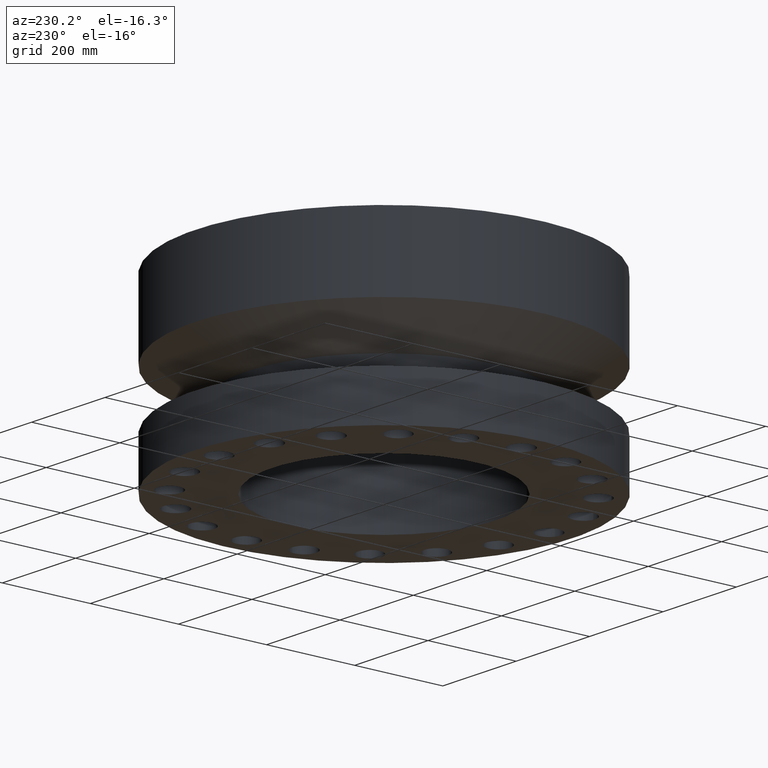
[diagram: clean part render]
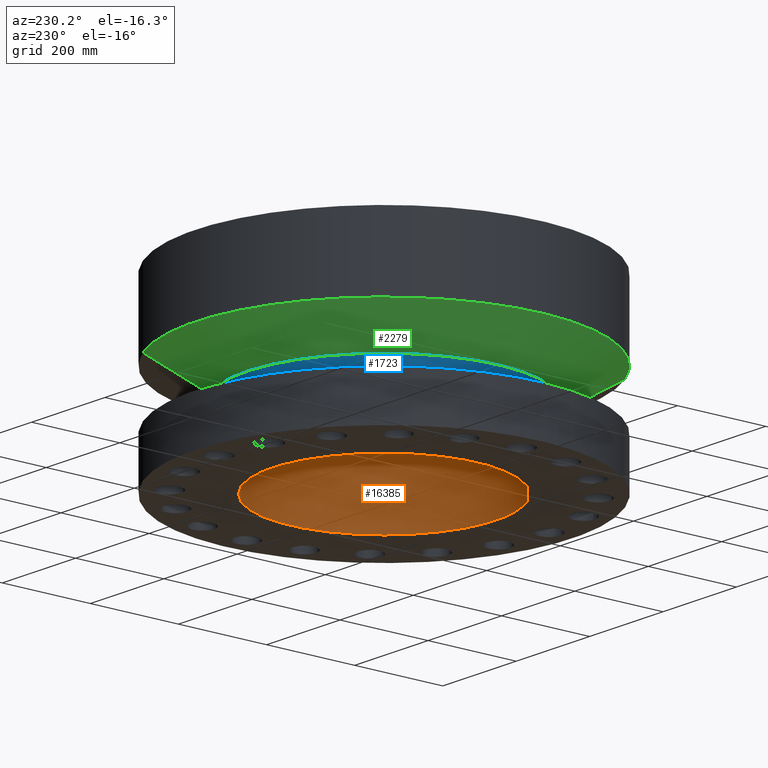
[diagram: same view with three faces highlighted in distinct colors, each labeled with its STEP entity id]
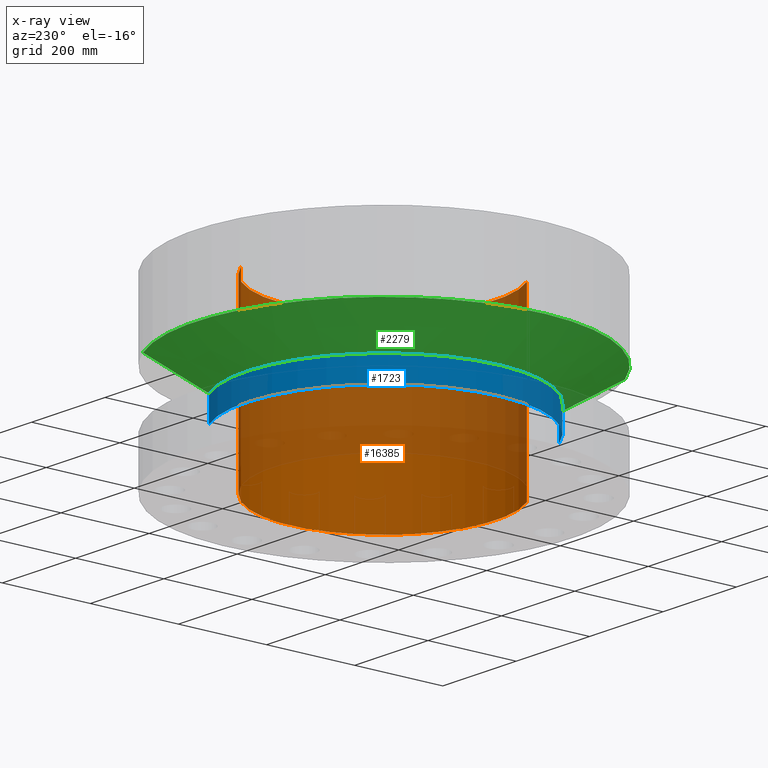
[diagram: x-ray of the same camera — body ghosted, the three highlighted faces saturated]
A machine part, auxiliary view with three faces highlighted in distinct colors.
The next image is the same camera in x-ray (body ghosted, the three faces saturated) — at least one of them is partly hidden behind the body in this view.
Their STEP definitions:

[orange] entity #16385 — the highlighted cylindrical surface (partial cylindrical patch) has radius 254 mm, axis along (0, 0, -1).
#15929=AXIS2_PLACEMENT_3D('Circle Axis2P3D',#15927,#15928,$) ;
#16358=AXIS2_PLACEMENT_3D('Cylinder Axis2P3D',#16355,#16356,#16357) ;
#16362=AXIS2_PLACEMENT_3D('Circle Axis2P3D',#16360,#16361,$) ;
#15922=CARTESIAN_POINT('Vertex',(-4.79425538606,-8.77582561894,15.7500000001)) ;
#15924=CARTESIAN_POINT('Vertex',(4.79425538606,8.77582561894,15.7500000001)) ;
#15927=CARTESIAN_POINT('Axis2P3D Location',(0.,0.,15.7500000001)) ;
#16355=CARTESIAN_POINT('Axis2P3D Location',(0.,0.,7.75000000003)) ;
#16360=CARTESIAN_POINT('Axis2P3D Location',(0.,0.,0.)) ;
#16364=CARTESIAN_POINT('Vertex',(-4.79425538606,-8.77582561894,0.)) ;
#16366=CARTESIAN_POINT('Vertex',(4.79425538606,8.77582561894,0.)) ;
#16369=CARTESIAN_POINT('Line Origine',(-4.79425538606,-8.77582561894,7.87500000003)) ;
#16374=CARTESIAN_POINT('Line Origine',(4.79425538606,8.77582561894,7.87500000003)) ;
#15928=DIRECTION('Axis2P3D Direction',(0.,0.,-0.0393700787402)) ;
#16356=DIRECTION('Axis2P3D Direction',(0.,0.,-0.0393700787402)) ;
#16357=DIRECTION('Axis2P3D XDirection',(-0.0188750212049,-0.0345504945626,0.)) ;
#16361=DIRECTION('Axis2P3D Direction',(0.,0.,-0.0393700787402)) ;
#16370=DIRECTION('Vector Direction',(0.,0.,-0.0393700787402)) ;
#16375=DIRECTION('Vector Direction',(0.,0.,-0.0393700787402)) ;
#16371=VECTOR('Line Direction',#16370,0.0393700787402) ;
#16376=VECTOR('Line Direction',#16375,0.0393700787402) ;
#16380=ORIENTED_EDGE('',*,*,#16368,.F.) ;
#16381=ORIENTED_EDGE('',*,*,#16373,.F.) ;
#16382=ORIENTED_EDGE('',*,*,#15931,.F.) ;
#16383=ORIENTED_EDGE('',*,*,#16378,.T.) ;
#16385=ADVANCED_FACE('PartBody',(#16384),#16359,.F.) ;
#15930=CIRCLE('generated circle',#15929,10.) ;
#16363=CIRCLE('generated circle',#16362,10.) ;
#16359=CYLINDRICAL_SURFACE('generated cylinder',#16358,10.) ;
#15931=EDGE_CURVE('',#15925,#15923,#15930,.T.) ;
#16368=EDGE_CURVE('',#16365,#16367,#16363,.F.) ;
#16373=EDGE_CURVE('',#15923,#16365,#16372,.T.) ;
#16378=EDGE_CURVE('',#15925,#16367,#16377,.T.) ;
#16379=EDGE_LOOP('',(#16380,#16381,#16382,#16383)) ;
#16384=FACE_OUTER_BOUND('',#16379,.T.) ;
#16372=LINE('Line',#16369,#16371) ;
#16377=LINE('Line',#16374,#16376) ;
#15923=VERTEX_POINT('',#15922) ;
#15925=VERTEX_POINT('',#15924) ;
#16365=VERTEX_POINT('',#16364) ;
#16367=VERTEX_POINT('',#16366) ;

[blue] entity #1723 — the highlighted cylindrical surface (partial cylindrical patch) has radius 311.15 mm, axis along (0, 0, -1).
#1492=AXIS2_PLACEMENT_3D('Circle Axis2P3D',#1490,#1491,$) ;
#1684=AXIS2_PLACEMENT_3D('Cylinder Axis2P3D',#1681,#1682,#1683) ;
#1714=AXIS2_PLACEMENT_3D('Circle Axis2P3D',#1712,#1713,$) ;
#1468=CARTESIAN_POINT('Vertex',(5.87296284792,10.7503863832,4.29098076213)) ;
#1475=CARTESIAN_POINT('Vertex',(-5.87296284792,-10.7503863832,4.29098076213)) ;
#1490=CARTESIAN_POINT('Axis2P3D Location',(0.,0.,4.29098076213)) ;
#1681=CARTESIAN_POINT('Axis2P3D Location',(0.,0.,7.75000000003)) ;
#1686=CARTESIAN_POINT('Line Origine',(5.87296284792,10.7503863832,5.39549038108)) ;
#1690=CARTESIAN_POINT('Vertex',(5.87296284792,10.7503863832,6.50000000003)) ;
#1697=CARTESIAN_POINT('Vertex',(-5.87296284792,-10.7503863832,6.50000000003)) ;
#1700=CARTESIAN_POINT('Line Origine',(-5.87296284792,-10.7503863832,5.39549038108)) ;
#1712=CARTESIAN_POINT('Axis2P3D Location',(0.,0.,6.50000000003)) ;
#1491=DIRECTION('Axis2P3D Direction',(-0.,0.,0.0393700787402)) ;
#1682=DIRECTION('Axis2P3D Direction',(0.,0.,-0.0393700787402)) ;
#1683=DIRECTION('Axis2P3D XDirection',(-0.0188750212049,-0.0345504945626,0.)) ;
#1687=DIRECTION('Vector Direction',(0.,0.,-0.0393700787402)) ;
#1701=DIRECTION('Vector Direction',(0.,0.,-0.0393700787402)) ;
#1713=DIRECTION('Axis2P3D Direction',(0.,0.,-0.0393700787402)) ;
#1688=VECTOR('Line Direction',#1687,0.0393700787402) ;
#1702=VECTOR('Line Direction',#1701,0.0393700787402) ;
#1718=ORIENTED_EDGE('',*,*,#1494,.F.) ;
#1719=ORIENTED_EDGE('',*,*,#1704,.T.) ;
#1720=ORIENTED_EDGE('',*,*,#1716,.T.) ;
#1721=ORIENTED_EDGE('',*,*,#1692,.F.) ;
#1723=ADVANCED_FACE('PartBody',(#1722),#1685,.T.) ;
#1493=CIRCLE('generated circle',#1492,12.25) ;
#1715=CIRCLE('generated circle',#1714,12.25) ;
#1685=CYLINDRICAL_SURFACE('generated cylinder',#1684,12.25) ;
#1494=EDGE_CURVE('',#1476,#1469,#1493,.F.) ;
#1692=EDGE_CURVE('',#1469,#1691,#1689,.F.) ;
#1704=EDGE_CURVE('',#1476,#1698,#1703,.F.) ;
#1716=EDGE_CURVE('',#1698,#1691,#1715,.T.) ;
#1717=EDGE_LOOP('',(#1718,#1719,#1720,#1721)) ;
#1722=FACE_OUTER_BOUND('',#1717,.T.) ;
#1689=LINE('Line',#1686,#1688) ;
#1703=LINE('Line',#1700,#1702) ;
#1469=VERTEX_POINT('',#1468) ;
#1476=VERTEX_POINT('',#1475) ;
#1691=VERTEX_POINT('',#1690) ;
#1698=VERTEX_POINT('',#1697) ;

[green] entity #2279 — the highlighted conical surface has half-angle 60 deg.
#1714=AXIS2_PLACEMENT_3D('Circle Axis2P3D',#1712,#1713,$) ;
#2240=AXIS2_PLACEMENT_3D('Cone Axis2P3D',#2237,#2238,#2239) ;
#2270=AXIS2_PLACEMENT_3D('Circle Axis2P3D',#2268,#2269,$) ;
#1690=CARTESIAN_POINT('Vertex',(5.87296284792,10.7503863832,6.50000000003)) ;
#1697=CARTESIAN_POINT('Vertex',(-5.87296284792,-10.7503863832,6.50000000003)) ;
#1712=CARTESIAN_POINT('Axis2P3D Location',(0.,0.,6.50000000003)) ;
#2237=CARTESIAN_POINT('Axis2P3D Location',(0.,0.,6.50000000003)) ;
#2242=CARTESIAN_POINT('Line Origine',(6.98163440595,12.7797960576,7.83512249753)) ;
#2246=CARTESIAN_POINT('Vertex',(8.09030596398,14.809205732,9.17024499504)) ;
#2253=CARTESIAN_POINT('Vertex',(-8.09030596398,-14.809205732,9.17024499504)) ;
#2256=CARTESIAN_POINT('Line Origine',(-6.98163440595,-12.7797960576,7.83512249753)) ;
#2268=CARTESIAN_POINT('Axis2P3D Location',(0.,0.,9.17024499504)) ;
#1713=DIRECTION('Axis2P3D Direction',(0.,0.,-0.0393700787402)) ;
#2238=DIRECTION('Axis2P3D Direction',(-0.,-0.,0.0393700787402)) ;
#2239=DIRECTION('Axis2P3D XDirection',(0.0188750212049,0.0345504945626,0.)) ;
#2243=DIRECTION('Vector Direction',(0.0163462478604,0.0299216060045,0.0196850393701)) ;
#2257=DIRECTION('Vector Direction',(-0.0163462478604,-0.0299216060045,0.0196850393701)) ;
#2269=DIRECTION('Axis2P3D Direction',(-0.,0.,0.0393700787402)) ;
#2244=VECTOR('Line Direction',#2243,0.0393700787402) ;
#2258=VECTOR('Line Direction',#2257,0.0393700787402) ;
#2274=ORIENTED_EDGE('',*,*,#1716,.F.) ;
#2275=ORIENTED_EDGE('',*,*,#2260,.T.) ;
#2276=ORIENTED_EDGE('',*,*,#2272,.T.) ;
#2277=ORIENTED_EDGE('',*,*,#2248,.F.) ;
#2279=ADVANCED_FACE('PartBody',(#2278),#2241,.T.) ;
#1715=CIRCLE('generated circle',#1714,12.25) ;
#2271=CIRCLE('generated circle',#2270,16.8750000001) ;
#2241=CONICAL_SURFACE('Cone',#2240,12.25,1.0471975512) ;
#1716=EDGE_CURVE('',#1698,#1691,#1715,.T.) ;
#2248=EDGE_CURVE('',#1691,#2247,#2245,.T.) ;
#2260=EDGE_CURVE('',#1698,#2254,#2259,.T.) ;
#2272=EDGE_CURVE('',#2254,#2247,#2271,.F.) ;
#2273=EDGE_LOOP('',(#2274,#2275,#2276,#2277)) ;
#2278=FACE_OUTER_BOUND('',#2273,.T.) ;
#2245=LINE('Line',#2242,#2244) ;
#2259=LINE('Line',#2256,#2258) ;
#1691=VERTEX_POINT('',#1690) ;
#1698=VERTEX_POINT('',#1697) ;
#2247=VERTEX_POINT('',#2246) ;
#2254=VERTEX_POINT('',#2253) ;